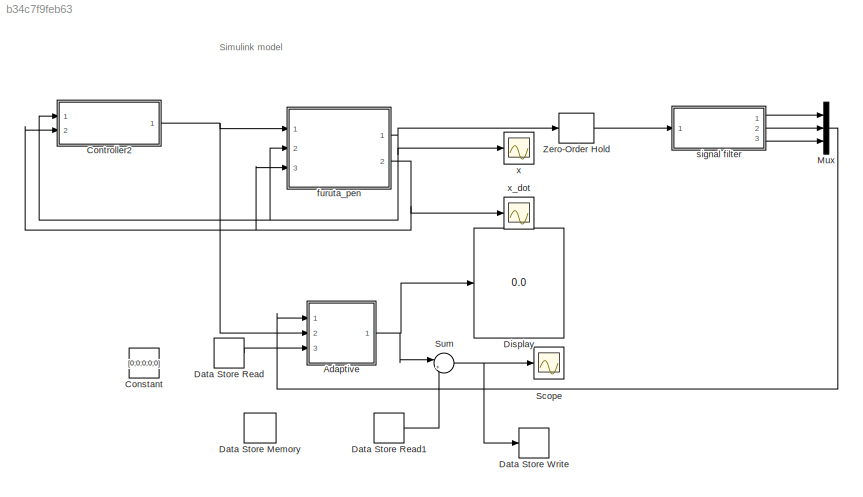
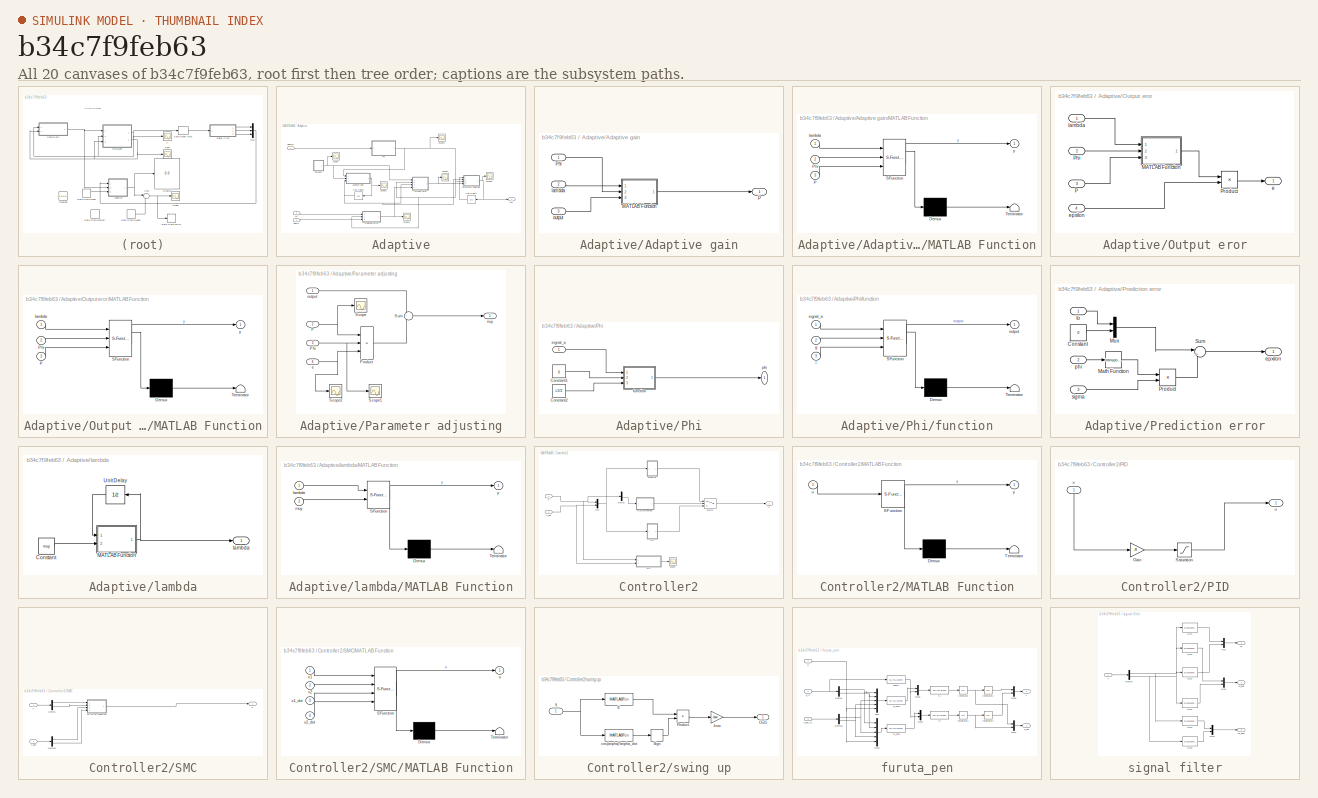
[diagram: thumbnail index - all 20 canvases of the model, root first then tree order]
MODEL slx_b34c7f9feb63
KIND model
CONFIG AbsTol = auto
CONFIG EnableMultiTasking = off
CONFIG FixedStep = 0.001
CONFIG MaxStep = auto
CONFIG MinStep = auto
CONFIG RelTol = 1e-3
CONFIG SampleTimeConstraint = Unconstrained
CONFIG Solver = FixedStepAuto
CONFIG SolverName = FixedStepAuto
CONFIG StartTime = 0.0
CONFIG StopTime = 5
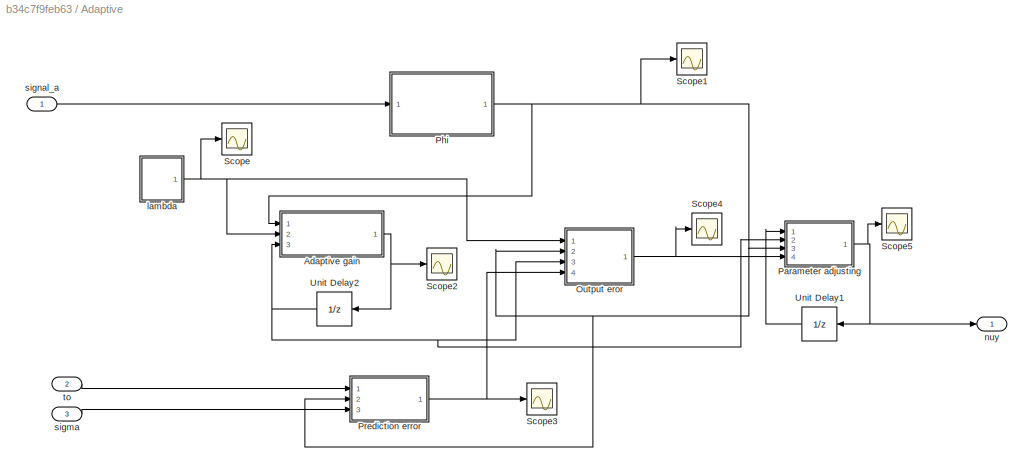
BLOCK [SubSystem] Adaptive
  Ports = [3, 1]
  RequestExecContextInheritance = off
  Variant = off
BLOCK [SubSystem] Adaptive/Adaptive gain
  Ports = [3, 1]
  RequestExecContextInheritance = off
  Variant = off
BLOCK [SubSystem] Adaptive/Adaptive gain/MATLAB Function
  ErrorFcn = Stateflow.Translate.translate
  PermitHierarchicalResolution = ExplicitOnly
  Ports = [3, 1]
  RequestExecContextInheritance = off
  SFBlockType = MATLAB Function
  TreatAsAtomicUnit = on
  Variant = off
BLOCK [Demux] Adaptive/Adaptive gain/MATLAB Function/ Demux 
  Outputs = 1
  Ports = [1, 1]
BLOCK [S-Function] Adaptive/Adaptive gain/MATLAB Function/ SFunction 
  EnableBusSupport = on
  FunctionName = sf_sfun
  PortCounts = [3 2]
  Ports = [3, 2]
  SFcnIsStateOwnerBlock = off
  SFunctionDeploymentMode = off
  Tag = Stateflow S-Function discrete2017 2
BLOCK [Terminator] Adaptive/Adaptive gain/MATLAB Function/ Terminator 
BLOCK [Inport] Adaptive/Adaptive gain/MATLAB Function/P
  IconDisplay = Port number
  Port = 3
BLOCK [Inport] Adaptive/Adaptive gain/MATLAB Function/Phi
  IconDisplay = Port number
  Port = 2
BLOCK [Inport] Adaptive/Adaptive gain/MATLAB Function/lambda
  IconDisplay = Port number
BLOCK [Outport] Adaptive/Adaptive gain/MATLAB Function/y
  IconDisplay = Port number
BLOCK [Outport] Adaptive/Adaptive gain/P
  IconDisplay = Port number
BLOCK [Inport] Adaptive/Adaptive gain/Phi
  IconDisplay = Port number
BLOCK [Inport] Adaptive/Adaptive gain/lambda
  IconDisplay = Port number
  Port = 2
BLOCK [Inport] Adaptive/Adaptive gain/output
  IconDisplay = Port number
  Port = 3
BLOCK [SubSystem] Adaptive/Output eror
  Ports = [4, 1]
  RequestExecContextInheritance = off
  Variant = off
BLOCK [SubSystem] Adaptive/Output eror/MATLAB Function
  ErrorFcn = Stateflow.Translate.translate
  PermitHierarchicalResolution = ExplicitOnly
  Ports = [3, 1]
  RequestExecContextInheritance = off
  SFBlockType = MATLAB Function
  TreatAsAtomicUnit = on
  Variant = off
BLOCK [Demux] Adaptive/Output eror/MATLAB Function/ Demux 
  Outputs = 1
  Ports = [1, 1]
BLOCK [S-Function] Adaptive/Output eror/MATLAB Function/ SFunction 
  EnableBusSupport = on
  FunctionName = sf_sfun
  PortCounts = [3 2]
  Ports = [3, 2]
  SFcnIsStateOwnerBlock = off
  SFunctionDeploymentMode = off
  Tag = Stateflow S-Function discrete2017 4
BLOCK [Terminator] Adaptive/Output eror/MATLAB Function/ Terminator 
BLOCK [Inport] Adaptive/Output eror/MATLAB Function/P
  IconDisplay = Port number
  Port = 3
BLOCK [Inport] Adaptive/Output eror/MATLAB Function/Phi
  IconDisplay = Port number
  Port = 2
BLOCK [Inport] Adaptive/Output eror/MATLAB Function/lambda
  IconDisplay = Port number
BLOCK [Outport] Adaptive/Output eror/MATLAB Function/y
  IconDisplay = Port number
BLOCK [Inport] Adaptive/Output eror/P
  IconDisplay = Port number
  Port = 3
BLOCK [Inport] Adaptive/Output eror/Phi
  IconDisplay = Port number
  Port = 2
BLOCK [Product] Adaptive/Output eror/Product
  InputSameDT = off
  OutDataTypeStr = Inherit: Inherit via internal rule
  Ports = [2, 1]
  RndMeth = Floor
  SaturateOnIntegerOverflow = off
BLOCK [Outport] Adaptive/Output eror/e
  IconDisplay = Port number
BLOCK [Inport] Adaptive/Output eror/epxilon
  IconDisplay = Port number
  Port = 4
BLOCK [Inport] Adaptive/Output eror/lambda
  IconDisplay = Port number
BLOCK [SubSystem] Adaptive/Parameter adjusting
  Ports = [4, 1]
  RequestExecContextInheritance = off
  Variant = off
BLOCK [Inport] Adaptive/Parameter adjusting/P
  IconDisplay = Port number
  Port = 2
BLOCK [Inport] Adaptive/Parameter adjusting/Phi
  IconDisplay = Port number
  Port = 3
BLOCK [Product] Adaptive/Parameter adjusting/Product
  InputSameDT = off
  Inputs = 3
  Multiplication = Matrix(*)
  OutDataTypeStr = Inherit: Inherit via internal rule
  Ports = [3, 1]
  RndMeth = Floor
  SaturateOnIntegerOverflow = off
BLOCK [Scope] Adaptive/Parameter adjusting/Scope
  NumInputPorts = 1
  Ports = [1]
  ScopeSpecificationString = C++SS(StrPVP('Location','[188, 365, 512, 604]'),StrPVP('Open','off'),MxPVP('AxesTitles',53,'struct(''axes1'',''%<SignalLabel>'')'),MxPVP('ScopeGraphics',56,'struct(''FigureColor'',''[0.5 0.5 0.5]'',''AxesColor'',''[0 0 0]'',''AxesTickColor'',''[1 1 1]'',''LineColors'',''[1 1 0;1 0 1;0 1 1;1 0 0;0 1 0;0 0 1]'',''LineStyles'',''-|-|-|-|-|-'',''LineWidths'',''[0.5 0.5 0.5 0.5 0.5 0.5]'',''MarkerStyle...<+197ch>  <repeated x4 — deduplicated; at blocks: Scope, Scope3, Scope4, Scope5>
BLOCK [Scope] Adaptive/Parameter adjusting/Scope1
  NumInputPorts = 1
  Ports = [1]
  ScopeSpecificationString = C++SS(StrPVP('Location','[772, 291, 1096, 530]'),StrPVP('Open','off'),MxPVP('AxesTitles',53,'struct(''axes1'',''%<SignalLabel>'')'),MxPVP('ScopeGraphics',56,'struct(''FigureColor'',''[0.5 0.5 0.5]'',''AxesColor'',''[0 0 0]'',''AxesTickColor'',''[1 1 1]'',''LineColors'',''[1 1 0;1 0 1;0 1 1;1 0 0;0 1 0;0 0 1]'',''LineStyles'',''-|-|-|-|-|-'',''LineWidths'',''[0.5 0.5 0.5 0.5 0.5 0.5]'',''MarkerStyl...<+241ch>
BLOCK [Scope] Adaptive/Parameter adjusting/Scope2
  NumInputPorts = 1
  Ports = [1]
  ScopeSpecificationString = C++SS(StrPVP('Location','[188, 365, 512, 604]'),StrPVP('Open','off'),MxPVP('AxesTitles',53,'struct(''axes1'',''%<SignalLabel>'')'),MxPVP('ScopeGraphics',56,'struct(''FigureColor'',''[0.5 0.5 0.5]'',''AxesColor'',''[0 0 0]'',''AxesTickColor'',''[1 1 1]'',''LineColors'',''[1 1 0;1 0 1;0 1 1;1 0 0;0 1 0;0 0 1]'',''LineStyles'',''-|-|-|-|-|-'',''LineWidths'',''[0.5 0.5 0.5 0.5 0.5 0.5]'',''MarkerStyle...<+236ch>
BLOCK [Sum] Adaptive/Parameter adjusting/Sum
  IconShape = round
  InputSameDT = off
  Inputs = +-
  OutDataTypeStr = Inherit: Inherit via internal rule
  Ports = [2, 1]
  SaturateOnIntegerOverflow = off
BLOCK [Inport] Adaptive/Parameter adjusting/e
  IconDisplay = Port number
  Port = 4
BLOCK [Outport] Adaptive/Parameter adjusting/nuy
  IconDisplay = Port number
BLOCK [Inport] Adaptive/Parameter adjusting/output
  IconDisplay = Port number
BLOCK [SubSystem] Adaptive/Phi
  Ports = [1, 1]
  RequestExecContextInheritance = off
  Variant = off
BLOCK [Constant] Adaptive/Phi/Constant1
  Value = g
BLOCK [Constant] Adaptive/Phi/Constant2
  Value = L0/2
BLOCK [SubSystem] Adaptive/Phi/function
  ErrorFcn = Stateflow.Translate.translate
  PermitHierarchicalResolution = ExplicitOnly
  Ports = [3, 1]
  RequestExecContextInheritance = off
  SFBlockType = MATLAB Function
  TreatAsAtomicUnit = on
  Variant = off
BLOCK [Demux] Adaptive/Phi/function/ Demux 
  Outputs = 1
  Ports = [1, 1]
BLOCK [S-Function] Adaptive/Phi/function/ SFunction 
  EnableBusSupport = on
  FunctionName = sf_sfun
  PortCounts = [3 2]
  Ports = [3, 2]
  SFcnIsStateOwnerBlock = off
  SFunctionDeploymentMode = off
  Tag = Stateflow S-Function discrete2017 5
BLOCK [Terminator] Adaptive/Phi/function/ Terminator 
BLOCK [Inport] Adaptive/Phi/function/g
  IconDisplay = Port number
  Port = 2
BLOCK [Inport] Adaptive/Phi/function/l
  IconDisplay = Port number
  Port = 3
BLOCK [Outport] Adaptive/Phi/function/output
  IconDisplay = Port number
BLOCK [Inport] Adaptive/Phi/function/signal_a
  IconDisplay = Port number
BLOCK [Outport] Adaptive/Phi/phi
  IconDisplay = Port number
BLOCK [Inport] Adaptive/Phi/signal_a
  IconDisplay = Port number
BLOCK [SubSystem] Adaptive/Prediction error
  Ports = [3, 1]
  RequestExecContextInheritance = off
  Variant = off
BLOCK [Constant] Adaptive/Prediction error/Constant
  Value = 0
BLOCK [Math] Adaptive/Prediction error/Math Function
  Operator = transpose
  Ports = [1, 1]
BLOCK [Mux] Adaptive/Prediction error/Mux
  DisplayOption = bar
  Inputs = 2
  Ports = [2, 1]
BLOCK [Product] Adaptive/Prediction error/Product
  InputSameDT = off
  Multiplication = Matrix(*)
  OutDataTypeStr = Inherit: Inherit via internal rule
  Ports = [2, 1]
  RndMeth = Floor
  SaturateOnIntegerOverflow = off
BLOCK [Sum] Adaptive/Prediction error/Sum
  IconShape = round
  InputSameDT = off
  Inputs = |+-
  OutDataTypeStr = Inherit: Inherit via internal rule
  Ports = [2, 1]
  SaturateOnIntegerOverflow = off
BLOCK [Outport] Adaptive/Prediction error/epxilon
  IconDisplay = Port number
BLOCK [Inport] Adaptive/Prediction error/phi
  IconDisplay = Port number
  Port = 2
BLOCK [Inport] Adaptive/Prediction error/sigma
  IconDisplay = Port number
  Port = 3
BLOCK [Inport] Adaptive/Prediction error/to
  IconDisplay = Port number
BLOCK [Scope] Adaptive/Scope
  NumInputPorts = 1
  Ports = [1]
  ScopeSpecificationString = C++SS(StrPVP('Location','[188, 365, 512, 604]'),StrPVP('Open','off'),MxPVP('AxesTitles',53,'struct(''axes1'',''%<SignalLabel>'')'),MxPVP('ScopeGraphics',56,'struct(''FigureColor'',''[0.5 0.5 0.5]'',''AxesColor'',''[0 0 0]'',''AxesTickColor'',''[1 1 1]'',''LineColors'',''[1 1 0;1 0 1;0 1 1;1 0 0;0 1 0;0 0 1]'',''LineStyles'',''-|-|-|-|-|-'',''LineWidths'',''[0.5 0.5 0.5 0.5 0.5 0.5]'',''MarkerStyle...<+235ch>
BLOCK [Scope] Adaptive/Scope1
  NumInputPorts = 1
  Ports = [1]
  ScopeSpecificationString = C++SS(StrPVP('Location','[188, 365, 512, 604]'),StrPVP('Open','off'),MxPVP('AxesTitles',53,'struct(''axes1'',''%<SignalLabel>'')'),MxPVP('ScopeGraphics',56,'struct(''FigureColor'',''[0.5 0.5 0.5]'',''AxesColor'',''[0 0 0]'',''AxesTickColor'',''[1 1 1]'',''LineColors'',''[1 1 0;1 0 1;0 1 1;1 0 0;0 1 0;0 0 1]'',''LineStyles'',''-|-|-|-|-|-'',''LineWidths'',''[0.5 0.5 0.5 0.5 0.5 0.5]'',''MarkerStyle...<+221ch>
BLOCK [Scope] Adaptive/Scope2
  NumInputPorts = 1
  Ports = [1]
  ScopeSpecificationString = C++SS(StrPVP('Location','[188, 365, 512, 604]'),StrPVP('Open','off'),MxPVP('AxesTitles',53,'struct(''axes1'',''%<SignalLabel>'')'),MxPVP('ScopeGraphics',56,'struct(''FigureColor'',''[0.5 0.5 0.5]'',''AxesColor'',''[0 0 0]'',''AxesTickColor'',''[1 1 1]'',''LineColors'',''[1 1 0;1 0 1;0 1 1;1 0 0;0 1 0;0 0 1]'',''LineStyles'',''-|-|-|-|-|-'',''LineWidths'',''[0.5 0.5 0.5 0.5 0.5 0.5]'',''MarkerStyle...<+247ch>
BLOCK [Scope] Adaptive/Scope3
  NumInputPorts = 1
  Ports = [1]
BLOCK [Scope] Adaptive/Scope4
  NumInputPorts = 1
  Ports = [1]
BLOCK [Scope] Adaptive/Scope5
  NumInputPorts = 1
  Ports = [1]
BLOCK [UnitDelay] Adaptive/Unit Delay1
  InitialCondition = [1;1;1;1;1]
  InputProcessing = Elements as channels (sample based)
  SampleTime = 0.001
BLOCK [UnitDelay] Adaptive/Unit Delay2
  InitialCondition = eye(5)
  InputProcessing = Elements as channels (sample based)
  SampleTime = 0.001
BLOCK [SubSystem] Adaptive/lambda
  Ports = [0, 1]
  RequestExecContextInheritance = off
  Variant = off
BLOCK [Constant] Adaptive/lambda/Constant
  Value = muy
BLOCK [SubSystem] Adaptive/lambda/MATLAB Function
  ErrorFcn = Stateflow.Translate.translate
  PermitHierarchicalResolution = ExplicitOnly
  Ports = [2, 1]
  RequestExecContextInheritance = off
  SFBlockType = MATLAB Function
  TreatAsAtomicUnit = on
  Variant = off
BLOCK [Demux] Adaptive/lambda/MATLAB Function/ Demux 
  Outputs = 1
  Ports = [1, 1]
BLOCK [S-Function] Adaptive/lambda/MATLAB Function/ SFunction 
  EnableBusSupport = on
  FunctionName = sf_sfun
  PortCounts = [2 2]
  Ports = [2, 2]
  SFcnIsStateOwnerBlock = off
  SFunctionDeploymentMode = off
  Tag = Stateflow S-Function discrete2017 6
BLOCK [Terminator] Adaptive/lambda/MATLAB Function/ Terminator 
BLOCK [Inport] Adaptive/lambda/MATLAB Function/lambda
  IconDisplay = Port number
BLOCK [Inport] Adaptive/lambda/MATLAB Function/muy
  IconDisplay = Port number
  Port = 2
BLOCK [Outport] Adaptive/lambda/MATLAB Function/y
  IconDisplay = Port number
BLOCK [UnitDelay] Adaptive/lambda/Unit Delay
  InputProcessing = Elements as channels (sample based)
  SampleTime = -1
BLOCK [Outport] Adaptive/lambda/lambda
  IconDisplay = Port number
BLOCK [Outport] Adaptive/nuy
  IconDisplay = Port number
BLOCK [Inport] Adaptive/sigma
  IconDisplay = Port number
  Port = 3
BLOCK [Inport] Adaptive/signal_a
  IconDisplay = Port number
BLOCK [Inport] Adaptive/to
  IconDisplay = Port number
  Port = 2
BLOCK [Constant] Constant
  Value = [0;0;0;0;0]
BLOCK [SubSystem] Controller2
  Ports = [2, 1]
  RequestExecContextInheritance = off
  Variant = off
BLOCK [Demux] Controller2/Demux
  DisplayOption = bar
  Outputs = 2
  Ports = [1, 2]
BLOCK [SubSystem] Controller2/MATLAB Function
  ErrorFcn = Stateflow.Translate.translate
  PermitHierarchicalResolution = ExplicitOnly
  Ports = [1, 1]
  RequestExecContextInheritance = off
  SFBlockType = MATLAB Function
  TreatAsAtomicUnit = on
  Variant = off
BLOCK [Demux] Controller2/MATLAB Function/ Demux 
  Outputs = 1
  Ports = [1, 1]
BLOCK [S-Function] Controller2/MATLAB Function/ SFunction 
  EnableBusSupport = on
  FunctionName = sf_sfun
  PortCounts = [1 2]
  Ports = [1, 2]
  SFcnIsStateOwnerBlock = off
  SFunctionDeploymentMode = off
  Tag = Stateflow S-Function discrete2017 1
BLOCK [Terminator] Controller2/MATLAB Function/ Terminator 
BLOCK [Inport] Controller2/MATLAB Function/u
  IconDisplay = Port number
BLOCK [Outport] Controller2/MATLAB Function/y
  IconDisplay = Port number
BLOCK [Mux] Controller2/Mux
  DisplayOption = bar
  Inputs = 2
  Ports = [2, 1]
BLOCK [SubSystem] Controller2/PID
  Ports = [1, 1]
  RequestExecContextInheritance = off
  Variant = off
BLOCK [Gain] Controller2/PID/Gain
  Gain = -R
  Multiplication = Matrix(K*u)
  OutDataTypeStr = Inherit: Inherit via internal rule
  ParamDataTypeStr = Inherit: Inherit via internal rule
  SaturateOnIntegerOverflow = off
BLOCK [Saturate] Controller2/PID/Saturation
  InputPortMap = u0
  LowerLimit = -up
  Ports = [1, 1]
  UpperLimit = up
BLOCK [Outport] Controller2/PID/u
  IconDisplay = Port number
BLOCK [Inport] Controller2/PID/x
  IconDisplay = Port number
BLOCK [SubSystem] Controller2/SMC
  Ports = [2, 1]
  RequestExecContextInheritance = off
  Variant = off
BLOCK [Demux] Controller2/SMC/Demux
  DisplayOption = bar
  Outputs = 2
  Ports = [1, 2]
BLOCK [Demux] Controller2/SMC/Demux1
  DisplayOption = bar
  Outputs = 2
  Ports = [1, 2]
BLOCK [SubSystem] Controller2/SMC/MATLAB Function
  ErrorFcn = Stateflow.Translate.translate
  PermitHierarchicalResolution = ExplicitOnly
  Ports = [4, 1]
  RequestExecContextInheritance = off
  SFBlockType = MATLAB Function
  TreatAsAtomicUnit = on
  Variant = off
BLOCK [Demux] Controller2/SMC/MATLAB Function/ Demux 
  Outputs = 1
  Ports = [1, 1]
BLOCK [S-Function] Controller2/SMC/MATLAB Function/ SFunction 
  EnableBusSupport = on
  FunctionName = sf_sfun
  PortCounts = [4 2]
  Ports = [4, 2]
  SFcnIsStateOwnerBlock = off
  SFunctionDeploymentMode = off
  Tag = Stateflow S-Function discrete2017 3
BLOCK [Terminator] Controller2/SMC/MATLAB Function/ Terminator 
BLOCK [Outport] Controller2/SMC/MATLAB Function/u
  IconDisplay = Port number
BLOCK [Inport] Controller2/SMC/MATLAB Function/x1
  IconDisplay = Port number
BLOCK [Inport] Controller2/SMC/MATLAB Function/x1_dot
  IconDisplay = Port number
  Port = 3
BLOCK [Inport] Controller2/SMC/MATLAB Function/x2
  IconDisplay = Port number
  Port = 2
BLOCK [Inport] Controller2/SMC/MATLAB Function/x2_dot
  IconDisplay = Port number
  Port = 4
BLOCK [Outport] Controller2/SMC/u
  IconDisplay = Port number
BLOCK [Inport] Controller2/SMC/x
  IconDisplay = Port number
BLOCK [Inport] Controller2/SMC/x_dot
  IconDisplay = Port number
  Port = 2
BLOCK [Scope] Controller2/Scope
  NumInputPorts = 1
  Ports = [1]
  ScopeSpecificationString = Simulink.scopes.TimeScopeBlockCfg('CurrentConfiguration', extmgr.ConfigurationSet(extmgr.Configuration('Core','General UI',true),extmgr.Configuration('Core','Source UI',true),extmgr.Configuration('Sources','WiredSimulink',true,'DataLoggingVariableName','ScopeData1'),extmgr.Configuration('Visuals','Time Domain',true),extmgr.Configuration('Tools','Plot Navigation',true),extmgr.Configuration('Tools',...<+40ch>
BLOCK [Switch] Controller2/Switch
  Criteria = u2 > Threshold
  InputSameDT = off
  SaturateOnIntegerOverflow = off
BLOCK [SubSystem] Controller2/swing up
  Ports = [1, 1]
  RequestExecContextInheritance = off
  Variant = off
BLOCK [Gain] Controller2/swing up/-ksw
  Gain = -ksw
  OutDataTypeStr = Inherit: Inherit via internal rule
  ParamDataTypeStr = Inherit: Inherit via internal rule
  SaturateOnIntegerOverflow = off
BLOCK [MATLABFcn] Controller2/swing up/E
  MATLABFcn = 1/2*(J1+m1*L1^2)*u(4)^2+m1*g*L1*(cos(u(2))-1)
  Ports = [1, 1]
BLOCK [Outport] Controller2/swing up/Out1
  IconDisplay = Port number
BLOCK [Product] Controller2/swing up/Product
  InputSameDT = off
  OutDataTypeStr = Inherit: Inherit via internal rule
  Ports = [2, 1]
  RndMeth = Floor
  SaturateOnIntegerOverflow = off
BLOCK [Signum] Controller2/swing up/Sign
BLOCK [MATLABFcn] Controller2/swing up/cos(anpha)*anpha_dot
  MATLABFcn = cos(u(2))*u(4)
  Ports = [1, 1]
BLOCK [Inport] Controller2/swing up/q
  IconDisplay = Port number
BLOCK [Outport] Controller2/u
  IconDisplay = Port number
BLOCK [Inport] Controller2/x
  IconDisplay = Port number
BLOCK [Inport] Controller2/x_dot
  IconDisplay = Port number
  Port = 2
BLOCK [DataStoreMemory] Data Store Memory
  DataStoreName = sigma
  Dimensions = [5,1]
  InitialValue = sigma
  ReadBeforeWriteMsg = warning
  ShowAdditionalParam = off
  WriteAfterReadMsg = warning
  WriteAfterWriteMsg = warning
BLOCK [DataStoreRead] Data Store Read
  DataStoreName = sigma
  Ports = [0, 1]
BLOCK [DataStoreRead] Data Store Read1
  DataStoreName = sigma
  Ports = [0, 1]
BLOCK [DataStoreWrite] Data Store Write
  DataStoreName = sigma
  Ports = [1]
BLOCK [Display] Display
  Decimation = 1
  Ports = [1]
BLOCK [Mux] Mux
  DisplayOption = bar
  Inputs = 3
  Ports = [3, 1]
BLOCK [Scope] Scope
  NumInputPorts = 1
  Ports = [1]
  ScopeSpecificationString = Simulink.scopes.TimeScopeBlockCfg('CurrentConfiguration', extmgr.ConfigurationSet(extmgr.Configuration('Core','General UI',true),extmgr.Configuration('Core','Source UI',true),extmgr.Configuration('Sources','WiredSimulink',true,'DataLoggingVariableName','ScopeData1'),extmgr.Configuration('Visuals','Time Domain',true,'SerializedDisplays',{struct('MinYLimReal','-474433254.73589','MaxYLimReal','147868...<+1536ch>
BLOCK [Sum] Sum
  IconShape = round
  InputSameDT = off
  Inputs = |++
  OutDataTypeStr = Inherit: Inherit via internal rule
  Ports = [2, 1]
  SaturateOnIntegerOverflow = off
BLOCK [ZeroOrderHold] Zero-Order Hold
  SampleTime = 0.001
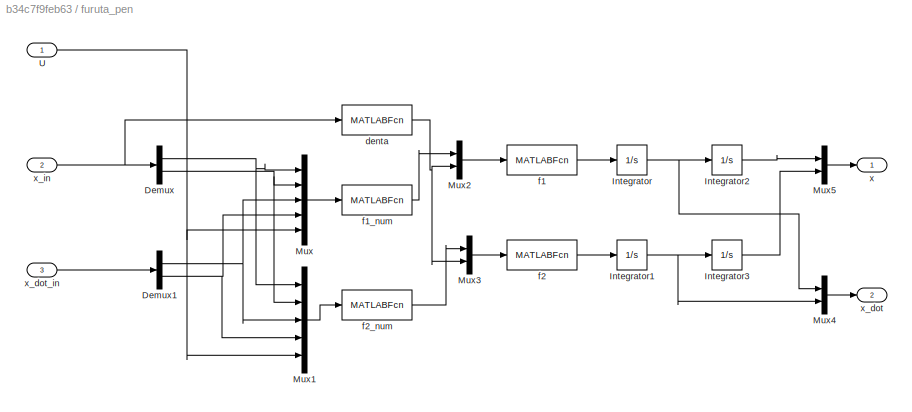
BLOCK [SubSystem] furuta_pen
  Ports = [3, 2]
  RequestExecContextInheritance = off
  Variant = off
BLOCK [Demux] furuta_pen/Demux
  DisplayOption = bar
  Outputs = 2
  Ports = [1, 2]
BLOCK [Demux] furuta_pen/Demux1
  DisplayOption = bar
  Outputs = 2
  Ports = [1, 2]
BLOCK [Integrator] furuta_pen/Integrator
  Ports = [1, 1]
BLOCK [Integrator] furuta_pen/Integrator1
  Ports = [1, 1]
BLOCK [Integrator] furuta_pen/Integrator2
  InitialCondition = theta_0*pi/180
  Ports = [1, 1]
BLOCK [Integrator] furuta_pen/Integrator3
  InitialCondition = anpha_0/180*pi
  Ports = [1, 1]
BLOCK [Mux] furuta_pen/Mux
  DisplayOption = bar
  Inputs = 5
  Ports = [5, 1]
BLOCK [Mux] furuta_pen/Mux1
  DisplayOption = bar
  Inputs = 5
  Ports = [5, 1]
BLOCK [Mux] furuta_pen/Mux2
  DisplayOption = bar
  Inputs = 2
  Ports = [2, 1]
BLOCK [Mux] furuta_pen/Mux3
  DisplayOption = bar
  Inputs = 2
  Ports = [2, 1]
BLOCK [Mux] furuta_pen/Mux4
  DisplayOption = bar
  Inputs = 2
  Ports = [2, 1]
BLOCK [Mux] furuta_pen/Mux5
  DisplayOption = bar
  Inputs = 2
  Ports = [2, 1]
BLOCK [Inport] furuta_pen/U
  IconDisplay = Port number
BLOCK [MATLABFcn] furuta_pen/denta
  MATLABFcn = J0*J1+m1^2*L1^4*sin(u(2))^2+m1^2*L0^2*L1^2+J0*m1*L1^2+J1*m1*L0^2+J1*m1*L1^2*sin(u(2))^2-m1^2*L0^2*L1^2*cos(u(2))^2
  Ports = [1, 1]
BLOCK [MATLABFcn] furuta_pen/f1
  MATLABFcn = u(1)/u(2)
  Ports = [1, 1]
BLOCK [MATLABFcn] furuta_pen/f1_num
  MATLABFcn = m1*L0*L1*cos(u(2))*(0.5*m1*L1^2*sin(2*u(2))*u(3)^2+m1*g*L1*sin(u(2))-beta1*u(4))-(m1*L1^2+J1)*(m1*L1^2*sin(2*u(2))*u(3)*u(4)+m1*L0*L1*sin(u(2))*u(4)^2-u(5)+beta0*u(3))
  Ports = [1, 1]
BLOCK [MATLABFcn] furuta_pen/f2
  MATLABFcn = u(1)/u(2)
  Ports = [1, 1]
BLOCK [MATLABFcn] furuta_pen/f2_num
  MATLABFcn = (m1*L0^2+m1*L1^2*sin(u(2))^2+J0)*(0.5*m1*L1^2*sin(2*u(2))*u(3)^2+m1*g*L1*sin(u(2))-beta1*u(4))-m1*L0*L1*cos(u(2))*(m1*L1^2*sin(2*u(2))*u(3)*u(4)+m1*L0*L1*sin(u(2))*u(4)^2-u(5)+beta0*u(3))
  Ports = [1, 1]
BLOCK [Outport] furuta_pen/x
  IconDisplay = Port number
BLOCK [Outport] furuta_pen/x_dot
  IconDisplay = Port number
  Port = 2
BLOCK [Inport] furuta_pen/x_dot_in
  IconDisplay = Port number
  Port = 3
BLOCK [Inport] furuta_pen/x_in
  IconDisplay = Port number
  Port = 2
BLOCK [SubSystem] signal filter
  Ports = [1, 3]
  RequestExecContextInheritance = off
  Variant = off
BLOCK [Demux] signal filter/Demux
  DisplayOption = bar
  Outputs = 2
  Ports = [1, 2]
BLOCK [DiscreteTransferFcn] signal filter/Gz11
  Denominator = [1,-2.90163934426229,2.80650362805697,-0.904829038553887]
  InputPortMap = u0
  Numerator = [4.40565509888493e-06,1.32169652966548e-05,1.32169652966548e-05,4.40565509888493e-06]
  Ports = [1, 1]
  SampleTime = 0.001
BLOCK [DiscreteTransferFcn] signal filter/Gz12
  Denominator = [1,-2.90163934426229,2.80650362805697,-0.904829038553887]
  InputPortMap = u0
  Numerator = [0.00881131019776986,0.00881131019776986,-0.00881131019776986,-0.00881131019776986]
  Ports = [1, 1]
  SampleTime = 0.001
BLOCK [DiscreteTransferFcn] signal filter/Gz13
  Denominator = [1,-2.90163934426229,2.80650362805697,-0.904829038553887]
  InputPortMap = u0
  Numerator = [17.6226203955397,-17.6226203955397,-17.6226203955397,17.6226203955397]
  Ports = [1, 1]
  SampleTime = 0.001
BLOCK [DiscreteTransferFcn] signal filter/Gz21
  Denominator = [1,-2.90163934426229,2.80650362805697,-0.904829038553887]
  InputPortMap = u0
  Numerator = [4.40565509888493e-06,1.32169652966548e-05,1.32169652966548e-05,4.40565509888493e-06]
  Ports = [1, 1]
  SampleTime = 0.001
BLOCK [DiscreteTransferFcn] signal filter/Gz22
  Denominator = [1,-2.90163934426229,2.80650362805697,-0.904829038553887]
  InputPortMap = u0
  Numerator = [0.00881131019776986,0.00881131019776986,-0.00881131019776986,-0.00881131019776986]
  Ports = [1, 1]
  SampleTime = 0.001
BLOCK [DiscreteTransferFcn] signal filter/Gz23
  Denominator = [1,-2.90163934426229,2.80650362805697,-0.904829038553887]
  InputPortMap = u0
  Numerator = [17.6226203955397,-17.6226203955397,-17.6226203955397,17.6226203955397]
  Ports = [1, 1]
  SampleTime = 0.001
BLOCK [Mux] signal filter/Mux
  DisplayOption = bar
  Inputs = 2
  Ports = [2, 1]
BLOCK [Mux] signal filter/Mux1
  DisplayOption = bar
  Inputs = 2
  Ports = [2, 1]
BLOCK [Mux] signal filter/Mux2
  DisplayOption = bar
  Inputs = 2
  Ports = [2, 1]
BLOCK [Inport] signal filter/x
  IconDisplay = Port number
BLOCK [Outport] signal filter/xa
  IconDisplay = Port number
BLOCK [Outport] signal filter/xa_2dot
  IconDisplay = Port number
  Port = 3
BLOCK [Outport] signal filter/xa_dot
  IconDisplay = Port number
  Port = 2
BLOCK [Scope] x
  NumInputPorts = 1
  Ports = [1]
  ScopeSpecificationString = Simulink.scopes.TimeScopeBlockCfg('CurrentConfiguration', extmgr.ConfigurationSet(extmgr.Configuration('Core','General UI',true),extmgr.Configuration('Core','Source UI',true),extmgr.Configuration('Sources','WiredSimulink',true,'DataLoggingVariableName','ScopeData2'),extmgr.Configuration('Visuals','Time Domain',true),extmgr.Configuration('Tools','Plot Navigation',true),extmgr.Configuration('Tools',...<+40ch>
BLOCK [Scope] x_dot
  NumInputPorts = 1
  Ports = [1]
  ScopeSpecificationString = Simulink.scopes.TimeScopeBlockCfg('CurrentConfiguration', extmgr.ConfigurationSet(extmgr.Configuration('Core','General UI',true),extmgr.Configuration('Core','Source UI',true),extmgr.Configuration('Sources','WiredSimulink',true,'DataLoggingVariableName','ScopeData3'),extmgr.Configuration('Visuals','Time Domain',true),extmgr.Configuration('Tools','Plot Navigation',true),extmgr.Configuration('Tools',...<+40ch>
ANNOTATION (root): Simulink model
LINE Adaptive/Adaptive gain/MATLAB Function:1 -> Adaptive/Adaptive gain/P:1
LINE Adaptive/Adaptive gain/Phi:1 -> Adaptive/Adaptive gain/MATLAB Function:2
LINE Adaptive/Adaptive gain/lambda:1 -> Adaptive/Adaptive gain/MATLAB Function:1
LINE Adaptive/Adaptive gain/output:1 -> Adaptive/Adaptive gain/MATLAB Function:3
NET Adaptive/Adaptive gain:1 -> Adaptive/Scope2:1, Adaptive/Unit Delay2:1
LINE Adaptive/Output eror/MATLAB Function:1 -> Adaptive/Output eror/Product:1
LINE Adaptive/Output eror/P:1 -> Adaptive/Output eror/MATLAB Function:3
LINE Adaptive/Output eror/Phi:1 -> Adaptive/Output eror/MATLAB Function:2
LINE Adaptive/Output eror/Product:1 -> Adaptive/Output eror/e:1
LINE Adaptive/Output eror/epxilon:1 -> Adaptive/Output eror/Product:2
LINE Adaptive/Output eror/lambda:1 -> Adaptive/Output eror/MATLAB Function:1
NET Adaptive/Output eror:1 -> Adaptive/Parameter adjusting:4, Adaptive/Scope4:1
NET Adaptive/Parameter adjusting/P:1 -> Adaptive/Parameter adjusting/Product:1, Adaptive/Parameter adjusting/Scope:1
NET Adaptive/Parameter adjusting/Phi:1 -> Adaptive/Parameter adjusting/Product:2, Adaptive/Parameter adjusting/Scope1:1
LINE Adaptive/Parameter adjusting/Product:1 -> Adaptive/Parameter adjusting/Sum:2
LINE Adaptive/Parameter adjusting/Sum:1 -> Adaptive/Parameter adjusting/nuy:1
NET Adaptive/Parameter adjusting/e:1 -> Adaptive/Parameter adjusting/Product:3, Adaptive/Parameter adjusting/Scope2:1
LINE Adaptive/Parameter adjusting/output:1 -> Adaptive/Parameter adjusting/Sum:1
NET Adaptive/Parameter adjusting:1 -> Adaptive/Scope5:1, Adaptive/Unit Delay1:1, Adaptive/nuy:1
LINE Adaptive/Phi/Constant1:1 -> Adaptive/Phi/function:2
LINE Adaptive/Phi/Constant2:1 -> Adaptive/Phi/function:3
LINE Adaptive/Phi/function:1 -> Adaptive/Phi/phi:1
LINE Adaptive/Phi/signal_a:1 -> Adaptive/Phi/function:1
NET Adaptive/Phi:1 -> Adaptive/Adaptive gain:1, Adaptive/Output eror:2, Adaptive/Parameter adjusting:3, Adaptive/Prediction error:2, Adaptive/Scope1:1
LINE Adaptive/Prediction error/Constant:1 -> Adaptive/Prediction error/Mux:2
LINE Adaptive/Prediction error/Math Function:1 -> Adaptive/Prediction error/Product:1
LINE Adaptive/Prediction error/Mux:1 -> Adaptive/Prediction error/Sum:1
LINE Adaptive/Prediction error/Product:1 -> Adaptive/Prediction error/Sum:2
LINE Adaptive/Prediction error/Sum:1 -> Adaptive/Prediction error/epxilon:1
LINE Adaptive/Prediction error/phi:1 -> Adaptive/Prediction error/Math Function:1
LINE Adaptive/Prediction error/sigma:1 -> Adaptive/Prediction error/Product:2
LINE Adaptive/Prediction error/to:1 -> Adaptive/Prediction error/Mux:1
NET Adaptive/Prediction error:1 -> Adaptive/Output eror:4, Adaptive/Scope3:1
LINE Adaptive/Unit Delay1:1 -> Adaptive/Parameter adjusting:1
NET Adaptive/Unit Delay2:1 -> Adaptive/Adaptive gain:3, Adaptive/Output eror:3, Adaptive/Parameter adjusting:2
LINE Adaptive/lambda/Constant:1 -> Adaptive/lambda/MATLAB Function:2
NET Adaptive/lambda/MATLAB Function:1 -> Adaptive/lambda/Unit Delay:1, Adaptive/lambda/lambda:1
LINE Adaptive/lambda/Unit Delay:1 -> Adaptive/lambda/MATLAB Function:1
NET Adaptive/lambda:1 -> Adaptive/Adaptive gain:2, Adaptive/Output eror:1, Adaptive/Scope:1
LINE Adaptive/sigma:1 -> Adaptive/Prediction error:3
LINE Adaptive/signal_a:1 -> Adaptive/Phi:1
LINE Adaptive/to:1 -> Adaptive/Prediction error:1
NET Adaptive:1 -> Display:1, Sum:1
LINE Controller2/Demux:2 -> Controller2/MATLAB Function:1
LINE Controller2/MATLAB Function:1 -> Controller2/Switch:2
NET Controller2/Mux:1 -> Controller2/PID:1, Controller2/swing up:1
LINE Controller2/PID/Gain:1 -> Controller2/PID/Saturation:1
LINE Controller2/PID/Saturation:1 -> Controller2/PID/u:1
LINE Controller2/PID/x:1 -> Controller2/PID/Gain:1
LINE Controller2/PID:1 -> Controller2/Switch:3
LINE Controller2/SMC/Demux1:1 -> Controller2/SMC/MATLAB Function:3
LINE Controller2/SMC/Demux1:2 -> Controller2/SMC/MATLAB Function:4
LINE Controller2/SMC/Demux:1 -> Controller2/SMC/MATLAB Function:1
LINE Controller2/SMC/Demux:2 -> Controller2/SMC/MATLAB Function:2
LINE Controller2/SMC/MATLAB Function:1 -> Controller2/SMC/u:1
LINE Controller2/SMC/x:1 -> Controller2/SMC/Demux:1
LINE Controller2/SMC/x_dot:1 -> Controller2/SMC/Demux1:1
LINE Controller2/SMC:1 -> Controller2/Scope:1
LINE Controller2/Switch:1 -> Controller2/u:1
LINE Controller2/swing up/-ksw:1 -> Controller2/swing up/Out1:1
LINE Controller2/swing up/E:1 -> Controller2/swing up/Product:1
LINE Controller2/swing up/Product:1 -> Controller2/swing up/-ksw:1
LINE Controller2/swing up/Sign:1 -> Controller2/swing up/Product:2
LINE Controller2/swing up/cos(anpha)*anpha_dot:1 -> Controller2/swing up/Sign:1
NET Controller2/swing up/q:1 -> Controller2/swing up/E:1, Controller2/swing up/cos(anpha)*anpha_dot:1
LINE Controller2/swing up:1 -> Controller2/Switch:1
NET Controller2/x:1 -> Controller2/Demux:1, Controller2/Mux:1, Controller2/SMC:1
NET Controller2/x_dot:1 -> Controller2/Mux:2, Controller2/SMC:2
NET Controller2:1 -> Adaptive:2, furuta_pen:1
LINE Data Store Read1:1 -> Sum:2
LINE Data Store Read:1 -> Adaptive:3
LINE Mux:1 -> Adaptive:1
NET Sum:1 -> Data Store Write:1, Scope:1
LINE Zero-Order Hold:1 -> signal filter:1
NET furuta_pen/Demux1:1 -> furuta_pen/Mux1:3, furuta_pen/Mux:3
NET furuta_pen/Demux1:2 -> furuta_pen/Mux1:4, furuta_pen/Mux:4
NET furuta_pen/Demux:1 -> furuta_pen/Mux1:1, furuta_pen/Mux:1
NET furuta_pen/Demux:2 -> furuta_pen/Mux1:2, furuta_pen/Mux:2
NET furuta_pen/Integrator1:1 -> furuta_pen/Integrator3:1, furuta_pen/Mux4:2
LINE furuta_pen/Integrator2:1 -> furuta_pen/Mux5:1
LINE furuta_pen/Integrator3:1 -> furuta_pen/Mux5:2
NET furuta_pen/Integrator:1 -> furuta_pen/Integrator2:1, furuta_pen/Mux4:1
LINE furuta_pen/Mux1:1 -> furuta_pen/f2_num:1
LINE furuta_pen/Mux2:1 -> furuta_pen/f1:1
LINE furuta_pen/Mux3:1 -> furuta_pen/f2:1
LINE furuta_pen/Mux4:1 -> furuta_pen/x_dot:1
LINE furuta_pen/Mux5:1 -> furuta_pen/x:1
LINE furuta_pen/Mux:1 -> furuta_pen/f1_num:1
NET furuta_pen/U:1 -> furuta_pen/Mux1:5, furuta_pen/Mux:5
NET furuta_pen/denta:1 -> furuta_pen/Mux2:2, furuta_pen/Mux3:2
LINE furuta_pen/f1:1 -> furuta_pen/Integrator:1
LINE furuta_pen/f1_num:1 -> furuta_pen/Mux2:1
LINE furuta_pen/f2:1 -> furuta_pen/Integrator1:1
LINE furuta_pen/f2_num:1 -> furuta_pen/Mux3:1
LINE furuta_pen/x_dot_in:1 -> furuta_pen/Demux1:1
NET furuta_pen/x_in:1 -> furuta_pen/Demux:1, furuta_pen/denta:1
NET furuta_pen:1 -> Controller2:1, Zero-Order Hold:1, furuta_pen:2, x:1
NET furuta_pen:2 -> Controller2:2, furuta_pen:3, x_dot:1
NET signal filter/Demux:1 -> signal filter/Gz11:1, signal filter/Gz12:1, signal filter/Gz13:1
NET signal filter/Demux:2 -> signal filter/Gz21:1, signal filter/Gz22:1, signal filter/Gz23:1
LINE signal filter/Gz11:1 -> signal filter/Mux:1
LINE signal filter/Gz12:1 -> signal filter/Mux1:1
LINE signal filter/Gz13:1 -> signal filter/Mux2:1
LINE signal filter/Gz21:1 -> signal filter/Mux:2
LINE signal filter/Gz22:1 -> signal filter/Mux1:2
LINE signal filter/Gz23:1 -> signal filter/Mux2:2
LINE signal filter/Mux1:1 -> signal filter/xa_dot:1
LINE signal filter/Mux2:1 -> signal filter/xa_2dot:1
LINE signal filter/Mux:1 -> signal filter/xa:1
LINE signal filter/x:1 -> signal filter/Demux:1
LINE signal filter:1 -> Mux:1
LINE signal filter:2 -> Mux:2
LINE signal filter:3 -> Mux:3
note: NET lines group one-source signal fan-out (src -> all destinations, sorted); 1:1 wires keep LINE
CHART Controller2/MATLAB Function states=1 transitions=1
  STATE_LABEL 'eML_blk_kernel()'
  STATE_LABEL 'SCRIPT:\nfunction y = fcn(u)\nif abs(u)<20*pi/180\n    y = 0;\nelse\n    y= 1;\nend'
CHART Adaptive/Adaptive gain/MATLAB Function states=1 transitions=1
  STATE_LABEL 'eML_blk_kernel()'
  STATE_LABEL "SCRIPT:\nfunction y = fcn(lambda, Phi, P)\n%#codegen\nnum = P*Phi*Phi'*P;\nden = lambda + trace(Phi'*P*Phi);\ny = 1/lambda*(P-num/den);"
CHART Controller2/SMC/MATLAB Function states=1 transitions=1
  STATE_LABEL 'eML_blk_kernel()'
  STATE_LABEL "SCRIPT:\nfunction u = fcn(x1,x2,x1_dot,x2_dot)\nb = [14.8452;12.5278];\nC = [0,17.3564;\n    0,67.377];\nD = [-0.1172,-0.2411;\n    -0.0989,-0.09359];\nM = [0.5,0;\n    0,10];\nQ= [5/16,-3/4;\n    -3/4,9/4];\nR = [161/160 -3;\n    -3 9];\nx = [x1;x2];\nx_dot = [x1_dot;x2_dot];\ns = M*x+x_dot;\nu = -(s'*R*s+s'*Q*(M+D)*x_dot+s'*Q*C*x)/(s'*Q*b);\n"
CHART Adaptive/Output eror/MATLAB Function states=1 transitions=1
  STATE_LABEL 'eML_blk_kernel()'
  STATE_LABEL "SCRIPT:\nfunction y = fcn(lambda, Phi, P)\n%#codegen\nden = lambda + trace(Phi'*P*Phi);\ny = 1/den;"
CHART Adaptive/Phi/function states=1 transitions=1
  STATE_LABEL 'eML_blk_kernel()'
  STATE_LABEL 'SCRIPT:\nfunction output = fcn(signal_a,g,l)\n%#codegen\ntheta = signal_a(1:2);\nthetaDot = signal_a(3:4);\ntheta2Dot = signal_a(5:6);\n\noutput = [theta2Dot(1),sin(theta(2))^2*theta2Dot(1)+sin(2*theta(2))*thetaDot(1)*thetaDot(2),l*(sin(theta(2))*thetaDot(2)^2-cos(theta(2))*theta2Dot(2)),thetaDot(1),0;\n    0,theta2Dot(2)-sin(theta(2))*cos(theta(2))*thetaDot(1)^2,-l*cos(theta(2))*theta2Dot(1)-g*sin(theta(...<+21ch>'
CHART Adaptive/lambda/MATLAB Function states=1 transitions=1
  STATE_LABEL 'eML_blk_kernel()'
  STATE_LABEL 'SCRIPT:\nfunction y = fcn(lambda,muy)\n%#codegen\n\ny = (1-muy)*lambda+muy;'
